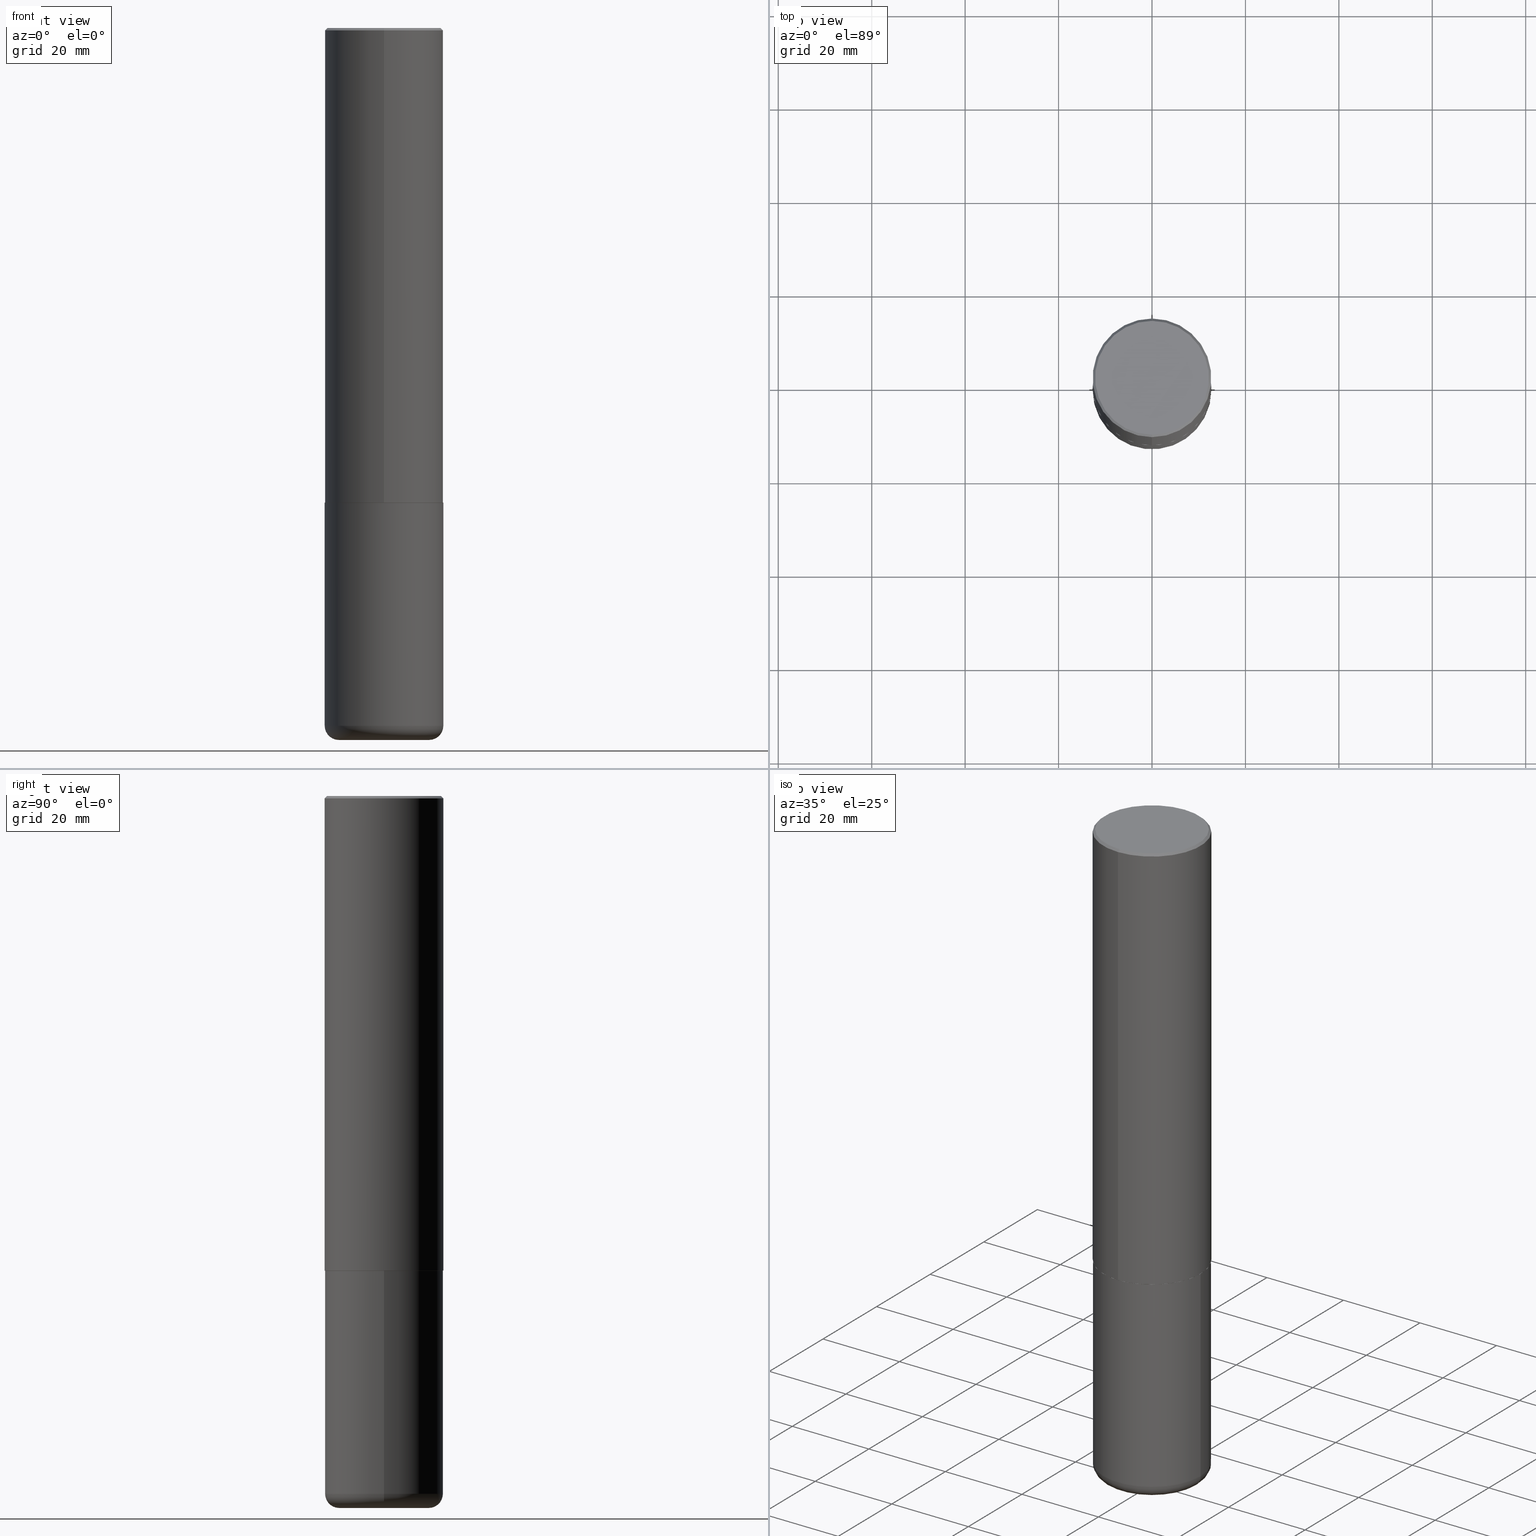
[diagram: canonical four-view strip — front | top / right | iso, engineering-drawing reading convention]
A machine part, canonical four-view strip (front | top / right | iso — engineering-drawing reading convention). The complete STEP part file that produces these views, byte-faithful:
ISO-10303-21;
HEADER;
FILE_DESCRIPTION (( 'STEP AP203' ),
    '1' );
FILE_NAME ('36641.STEP',
    '2024-03-01T17:18:18',
    ( '' ),
    ( '' ),
    'SwSTEP 2.0',
    'SolidWorks 2023',
    '' );
FILE_SCHEMA (( 'CONFIG_CONTROL_DESIGN' ));
ENDSEC;

DATA;
#1 = PERSON_AND_ORGANIZATION ( #275, #354 ) ;
#2 = FACE_OUTER_BOUND ( 'NONE', #121, .T. ) ;
#3 = DATE_TIME_ROLE ( 'creation_date' ) ;
#4 = APPROVAL_DATE_TIME ( #158, #288 ) ;
#5 = LOCAL_TIME ( 12, 18, 18.00000000000000000, #352 ) ;
#6 = ADVANCED_FACE ( 'NONE', ( #2 ), #103, .T. ) ;
#7 = PERSON_AND_ORGANIZATION ( #275, #354 ) ;
#8 = DIRECTION ( 'NONE',  ( -2.445400688795312496E-29, 3.491578886822374431E-15, 1.000000000000000000 ) ) ;
#9 = CC_DESIGN_DATE_AND_TIME_ASSIGNMENT ( #67, #3, ( #319 ) ) ;
#10 = ORIENTED_EDGE ( 'NONE', *, *, #38, .F. ) ;
#11 = DIRECTION ( 'NONE',  ( -2.445468806185136597E-29, 3.491481338843145583E-15, 1.000000000000000000 ) ) ;
#12 = AXIS2_PLACEMENT_3D ( 'NONE', #50, #356, #73 ) ;
#13 = AXIS2_PLACEMENT_3D ( 'NONE', #96, #37, #282 ) ;
#14 = DIRECTION ( 'NONE',  ( 1.000000000000000000, -6.982962677686273021E-15, 0.000000000000000000 ) ) ;
#15 = CARTESIAN_POINT ( 'NONE',  ( 4.890801377590651547E-31, -6.983157773644785987E-17, -0.02000000000000010797 ) ) ;
#16 = PLANE ( 'NONE',  #194 ) ;
#17 = CIRCLE ( 'NONE', #417, 0.5000000000000000000 ) ;
#18 = CC_DESIGN_APPROVAL ( #288, ( #319 ) ) ;
#19 = EDGE_CURVE ( 'NONE', #398, #113, #313, .T. ) ;
#20 = VERTEX_POINT ( 'NONE', #388 ) ;
#21 = DIRECTION ( 'NONE',  ( -2.445468806185136597E-29, 3.491481338843145583E-15, 1.000000000000000000 ) ) ;
#22 = CARTESIAN_POINT ( 'NONE',  ( 1.437935658036860328E-28, -2.052991027239769923E-14, -5.880000000000000782 ) ) ;
#23 = EDGE_LOOP ( 'NONE', ( #144, #81, #231, #93 ) ) ;
#24 = MANIFOLD_SOLID_BREP ( 'Body-Move/Copy2[2]', #154 ) ;
#25 = ADVANCED_FACE ( 'NONE', ( #253 ), #33, .T. ) ;
#26 = VECTOR ( 'NONE', #362, 39.37007874015748854 ) ;
#27 = DIRECTION ( 'NONE',  ( -2.445400688795312216E-29, 3.491578886822374431E-15, 1.000000000000000000 ) ) ;
#28 = PRODUCT ( '36641', '36641', '', ( #351 ) ) ;
#29 = CC_DESIGN_DATE_AND_TIME_ASSIGNMENT ( #142, #168, ( #358 ) ) ;
#30 = COORDINATED_UNIVERSAL_TIME_OFFSET ( 5, 0, .BEHIND. ) ;
#31 = ORIENTED_EDGE ( 'NONE', *, *, #325, .T. ) ;
#32 = CARTESIAN_POINT ( 'NONE',  ( 0.000000000000000000, 0.000000000000000000, 0.000000000000000000 ) ) ;
#33 = CONICAL_SURFACE ( 'NONE', #385, 0.4989999999999999991, 0.7853981633980972044 ) ;
#34 = EDGE_LOOP ( 'NONE', ( #162, #150 ) ) ;
#35 = CALENDAR_DATE ( 2024, 1, 3 ) ;
#36 = DIRECTION ( 'NONE',  ( -2.445400688795312496E-29, 3.491578886822374431E-15, 1.000000000000000000 ) ) ;
#37 = DIRECTION ( 'NONE',  ( -2.445400688795312496E-29, 3.491578886822374431E-15, 1.000000000000000000 ) ) ;
#38 = EDGE_CURVE ( 'NONE', #113, #398, #258, .T. ) ;
#39 = AXIS2_PLACEMENT_3D ( 'NONE', #114, #107, #233 ) ;
#40 = CIRCLE ( 'NONE', #68, 0.5000000000000000000 ) ;
#41 = CARTESIAN_POINT ( 'NONE',  ( 9.781875224740546387E-29, -1.396592535537258233E-14, -4.000000000000000000 ) ) ;
#42 = ORIENTED_EDGE ( 'NONE', *, *, #317, .F. ) ;
#43 = APPROVAL_DATE_TIME ( #255, #391 ) ;
#44 = DIRECTION ( 'NONE',  ( 1.000000000000000000, -6.982962677686265133E-15, 4.883557194083111780E-29 ) ) ;
#45 = EDGE_CURVE ( 'NONE', #239, #100, #370, .T. ) ;
#46 = PLANE ( 'NONE',  #403 ) ;
#47 = CC_DESIGN_PERSON_AND_ORGANIZATION_ASSIGNMENT ( #389, #399, ( #234 ) ) ;
#48 = DIRECTION ( 'NONE',  ( -2.445468806185136877E-29, 3.491481338843145188E-15, 1.000000000000000000 ) ) ;
#49 = ORIENTED_EDGE ( 'NONE', *, *, #85, .T. ) ;
#50 = CARTESIAN_POINT ( 'NONE',  ( 9.781875224740546387E-29, -1.396592535537258233E-14, -4.000000000000000000 ) ) ;
#51 = EDGE_CURVE ( 'NONE', #411, #239, #145, .T. ) ;
#52 = CARTESIAN_POINT ( 'NONE',  ( -3.430248998885764992E-15, -0.5000000000000001110, -0.01999999999999835937 ) ) ;
#53 = ORIENTED_EDGE ( 'NONE', *, *, #325, .F. ) ;
#54 = CIRCLE ( 'NONE', #201, 0.4989999999999999991 ) ;
#55 = CIRCLE ( 'NONE', #13, 0.5000000000000000000 ) ;
#56 = CARTESIAN_POINT ( 'NONE',  ( 3.552713678800502507E-15, 0.5000000000000002220, -1.745789443411188201E-15 ) ) ;
#57 = DIRECTION ( 'NONE',  ( -6.982962677686266711E-15, -1.000000000000000000, 3.491481338843145583E-15 ) ) ;
#58 = ADVANCED_FACE ( 'NONE', ( #299 ), #16, .T. ) ;
#59 = FACE_OUTER_BOUND ( 'NONE', #77, .T. ) ;
#60 = EDGE_LOOP ( 'NONE', ( #337, #353, #312, #10 ) ) ;
#61 = CONICAL_SURFACE ( 'NONE', #286, 0.5000000000000000000, 0.7853981633974446153 ) ;
#62 = LOCAL_TIME ( 12, 18, 18.00000000000000000, #360 ) ;
#63 = CARTESIAN_POINT ( 'NONE',  ( -0.3799999999999999489, -1.782984787650931928E-14, -5.880000000000000782 ) ) ;
#64 = VERTEX_POINT ( 'NONE', #331 ) ;
#65 = DIRECTION ( 'NONE',  ( -2.445400688795312496E-29, 3.491578886822374431E-15, 1.000000000000000000 ) ) ;
#66 = EDGE_CURVE ( 'NONE', #160, #414, #210, .T. ) ;
#67 = DATE_AND_TIME ( #278, #5 ) ;
#68 = AXIS2_PLACEMENT_3D ( 'NONE', #118, #184, #306 ) ;
#69 = DIRECTION ( 'NONE',  ( -2.445468806185136597E-29, 3.491481338843145583E-15, 1.000000000000000000 ) ) ;
#70 = PERSON_AND_ORGANIZATION_ROLE ( 'design_owner' ) ;
#71 = EDGE_CURVE ( 'NONE', #262, #113, #76, .T. ) ;
#72 = FACE_OUTER_BOUND ( 'NONE', #111, .T. ) ;
#73 = DIRECTION ( 'NONE',  ( 1.000000000000000000, -6.982962677686266711E-15, 0.000000000000000000 ) ) ;
#74 = AXIS2_PLACEMENT_3D ( 'NONE', #152, #122, #374 ) ;
#75 = PERSON_AND_ORGANIZATION ( #275, #354 ) ;
#76 = LINE ( 'NONE', #140, #26 ) ;
#77 = EDGE_LOOP ( 'NONE', ( #245, #49, #218, #273 ) ) ;
#78 = DIRECTION ( 'NONE',  ( 6.982962677686265922E-15, 1.000000000000000000, -3.491643216902136408E-15 ) ) ;
#79 = PERSON_AND_ORGANIZATION_ROLE ( 'creator' ) ;
#80 = CARTESIAN_POINT ( 'NONE',  ( 4.890801377590651547E-31, -6.983157773644785987E-17, -0.02000000000000010797 ) ) ;
#81 = ORIENTED_EDGE ( 'NONE', *, *, #368, .F. ) ;
#82 = TOROIDAL_SURFACE ( 'NONE', #309, 0.3799999999999999489, 0.1200000000000004674 ) ;
#83 = AXIS2_PLACEMENT_3D ( 'NONE', #264, #94, #371 ) ;
#84 = CARTESIAN_POINT ( 'NONE',  ( 1.467281283711082406E-28, -2.094888803305887902E-14, -6.000000000000001776 ) ) ;
#85 = EDGE_CURVE ( 'NONE', #64, #100, #366, .T. ) ;
#86 = CARTESIAN_POINT ( 'NONE',  ( -3.491481338843134933E-15, -0.5000000000000002220, 1.745789443411188201E-15 ) ) ;
#87 = ORIENTED_EDGE ( 'NONE', *, *, #368, .T. ) ;
#88 = DIRECTION ( 'NONE',  ( -1.000000000000000000, 6.982962677686265922E-15, -4.876176775795935793E-29 ) ) ;
#89 = UNCERTAINTY_MEASURE_WITH_UNIT (LENGTH_MEASURE( 1.000000000000000082E-05 ), #198, 'distance_accuracy_value', 'NONE');
#90 = LOCAL_TIME ( 12, 18, 18.00000000000000000, #315 ) ;
#91 = DIRECTION ( 'NONE',  ( 1.000000000000000000, -6.982962677686262766E-15, 0.000000000000000000 ) ) ;
#92 = FACE_OUTER_BOUND ( 'NONE', #188, .T. ) ;
#93 = ORIENTED_EDGE ( 'NONE', *, *, #174, .T. ) ;
#94 = DIRECTION ( 'NONE',  ( -2.445400688795312496E-29, 3.491578886822374431E-15, 1.000000000000000000 ) ) ;
#95 = ORIENTED_EDGE ( 'NONE', *, *, #19, .F. ) ;
#96 = CARTESIAN_POINT ( 'NONE',  ( 4.890801377590651547E-31, -6.983157773644785987E-17, -0.02000000000000010797 ) ) ;
#97 = ADVANCED_FACE ( 'NONE', ( #297 ), #82, .T. ) ;
#98 = CARTESIAN_POINT ( 'NONE',  ( 0.5000000000000002220, -2.402139161124082943E-14, -5.880000000000000782 ) ) ;
#99 = PERSON_AND_ORGANIZATION_ROLE ( 'creator' ) ;
#100 = VERTEX_POINT ( 'NONE', #296 ) ;
#101 = DIRECTION ( 'NONE',  ( 0.000000000000000000, 0.000000000000000000, 1.000000000000000000 ) ) ;
#102 = AXIS2_PLACEMENT_3D ( 'NONE', #369, #336, #88 ) ;
#103 = CYLINDRICAL_SURFACE ( 'NONE', #346, 0.5000000000000000000 ) ;
#104 = DIRECTION ( 'NONE',  ( -2.445400688795312496E-29, 3.491578886822374431E-15, 1.000000000000000000 ) ) ;
#105 = DIRECTION ( 'NONE',  ( -6.982962677686265922E-15, -1.000000000000000000, 3.284787166730577015E-15 ) ) ;
#106 = SECURITY_CLASSIFICATION_LEVEL ( 'unclassified' ) ;
#107 = DIRECTION ( 'NONE',  ( -2.445400688795312496E-29, 3.491578886822374431E-15, 1.000000000000000000 ) ) ;
#108 = ORIENTED_EDGE ( 'NONE', *, *, #270, .T. ) ;
#109 = CIRCLE ( 'NONE', #265, 0.4989999999999999991 ) ;
#110 = DIRECTION ( 'NONE',  ( -6.982962677686265922E-15, -1.000000000000000000, 3.491643216902136408E-15 ) ) ;
#111 = EDGE_LOOP ( 'NONE', ( #127, #277, #31, #328 ) ) ;
#112 = DIRECTION ( 'NONE',  ( -2.445400688795312496E-29, 3.491578886822374431E-15, 1.000000000000000000 ) ) ;
#113 = VERTEX_POINT ( 'NONE', #364 ) ;
#114 = CARTESIAN_POINT ( 'NONE',  ( 9.781602755181249985E-29, -1.396631554728949772E-14, -4.000000000000000000 ) ) ;
#115 = ADVANCED_FACE ( 'NONE', ( #256 ), #61, .T. ) ;
#116 = AXIS2_PLACEMENT_3D ( 'NONE', #41, #361, #169 ) ;
#117 = LOCAL_TIME ( 12, 18, 18.00000000000000000, #320 ) ;
#118 = CARTESIAN_POINT ( 'NONE',  ( 1.437935658036860328E-28, -2.052991027239769923E-14, -5.880000000000000782 ) ) ;
#119 = CYLINDRICAL_SURFACE ( 'NONE', #148, 0.5000000000000002220 ) ;
#120 = FACE_OUTER_BOUND ( 'NONE', #332, .T. ) ;
#121 = EDGE_LOOP ( 'NONE', ( #416, #310, #302, #304 ) ) ;
#122 = DIRECTION ( 'NONE',  ( -2.445400688795312496E-29, 3.491578886822374431E-15, 1.000000000000000000 ) ) ;
#123 = ORIENTED_EDGE ( 'NONE', *, *, #19, .T. ) ;
#124 = LINE ( 'NONE', #318, #330 ) ;
#125 = ORIENTED_EDGE ( 'NONE', *, *, #71, .T. ) ;
#126 = PERSON_AND_ORGANIZATION ( #275, #354 ) ;
#127 = ORIENTED_EDGE ( 'NONE', *, *, #249, .F. ) ;
#128 = LOCAL_TIME ( 12, 18, 18.00000000000000000, #30 ) ;
#129 =( NAMED_UNIT ( * ) SI_UNIT ( $, .STERADIAN. ) SOLID_ANGLE_UNIT ( ) );
#130 = CARTESIAN_POINT ( 'NONE',  ( -5.846550105415713449E-45, 8.347789792631125734E-31, 2.390835224756529802E-16 ) ) ;
#131 = EDGE_CURVE ( 'NONE', #20, #173, #232, .T. ) ;
#132 = CARTESIAN_POINT ( 'NONE',  ( 0.000000000000000000, 0.000000000000000000, 0.000000000000000000 ) ) ;
#133 = PERSON_AND_ORGANIZATION ( #275, #354 ) ;
#134 = VECTOR ( 'NONE', #27, 39.37007874015748143 ) ;
#135 = ORIENTED_EDGE ( 'NONE', *, *, #396, .F. ) ;
#136 = DATE_AND_TIME ( #35, #90 ) ;
#137 = DIRECTION ( 'NONE',  ( -2.445468806185136597E-29, 3.491481338843145583E-15, 1.000000000000000000 ) ) ;
#138 = ORIENTED_EDGE ( 'NONE', *, *, #165, .F. ) ;
#139 = EDGE_CURVE ( 'NONE', #100, #239, #402, .T. ) ;
#140 = CARTESIAN_POINT ( 'NONE',  ( 3.545608251442997346E-15, 0.4989999999999860658, -4.000000000000000888 ) ) ;
#141 = APPROVAL ( #415, 'UNSPECIFIED' ) ;
#142 = DATE_AND_TIME ( #202, #62 ) ;
#143 = CARTESIAN_POINT ( 'NONE',  ( 9.779157354492455145E-29, -1.396282396840267582E-14, -3.999000000000000110 ) ) ;
#144 = ORIENTED_EDGE ( 'NONE', *, *, #270, .F. ) ;
#145 = LINE ( 'NONE', #177, #272 ) ;
#146 = ORIENTED_EDGE ( 'NONE', *, *, #382, .F. ) ;
#147 = DIRECTION ( 'NONE',  ( -2.445468806185136597E-29, 3.491481338843145583E-15, 1.000000000000000000 ) ) ;
#148 = AXIS2_PLACEMENT_3D ( 'NONE', #343, #308, #412 ) ;
#149 = FACE_OUTER_BOUND ( 'NONE', #212, .T. ) ;
#150 = ORIENTED_EDGE ( 'NONE', *, *, #193, .F. ) ;
#151 = CYLINDRICAL_SURFACE ( 'NONE', #209, 0.5000000000000000000 ) ;
#152 = CARTESIAN_POINT ( 'NONE',  ( -5.846550105415713449E-45, 8.347789792631125734E-31, 2.390835224756529802E-16 ) ) ;
#153 = ORIENTED_EDGE ( 'NONE', *, *, #66, .F. ) ;
#154 = CLOSED_SHELL ( 'NONE', ( #298, #377, #291, #115, #407, #25, #159, #189 ) ) ;
#155 = CC_DESIGN_APPROVAL ( #141, ( #234 ) ) ;
#156 = CARTESIAN_POINT ( 'NONE',  ( 0.5000000000000000000, -1.745740669421571411E-14, -4.000000000000000000 ) ) ;
#157 = ORIENTED_EDGE ( 'NONE', *, *, #139, .T. ) ;
#158 = DATE_AND_TIME ( #221, #128 ) ;
#159 = ADVANCED_FACE ( 'NONE', ( #290 ), #390, .F. ) ;
#160 = VERTEX_POINT ( 'NONE', #228 ) ;
#161 =( NAMED_UNIT ( * ) PLANE_ANGLE_UNIT ( ) SI_UNIT ( $, .RADIAN. ) );
#162 = ORIENTED_EDGE ( 'NONE', *, *, #131, .F. ) ;
#163 = VECTOR ( 'NONE', #367, 39.37007874015748143 ) ;
#164 = CARTESIAN_POINT ( 'NONE',  ( 3.491481338843133355E-15, 0.4999999999999999445, -0.02000000000000185310 ) ) ;
#165 = EDGE_CURVE ( 'NONE', #262, #179, #54, .T. ) ;
#166 =( LENGTH_UNIT ( ) NAMED_UNIT ( * ) SI_UNIT ( $, .METRE. ) );
#167 = DIRECTION ( 'NONE',  ( -6.982962677686265922E-15, -1.000000000000000000, 3.278217592397112312E-15 ) ) ;
#168 = DATE_TIME_ROLE ( 'classification_date' ) ;
#169 = DIRECTION ( 'NONE',  ( 1.000000000000000000, -6.982962677686266711E-15, 0.000000000000000000 ) ) ;
#170 = DIRECTION ( 'NONE',  ( -6.982962677686265922E-15, -1.000000000000000000, 3.284787166730577015E-15 ) ) ;
#171 = CARTESIAN_POINT ( 'NONE',  ( 3.351822085289406364E-15, 0.4799999999999998157, -1.556416104436912533E-15 ) ) ;
#172 = AXIS2_PLACEMENT_3D ( 'NONE', #340, #147, #182 ) ;
#173 = VERTEX_POINT ( 'NONE', #260 ) ;
#174 = EDGE_CURVE ( 'NONE', #414, #283, #17, .T. ) ;
#175 = DIRECTION ( 'NONE',  ( 4.937700262164529898E-15, 0.7071067811865424657, -0.7071067811865525687 ) ) ;
#176 = ORIENTED_EDGE ( 'NONE', *, *, #45, .T. ) ;
#177 = CARTESIAN_POINT ( 'NONE',  ( 0.5000000000000000000, -3.491481338843133355E-15, 2.438088387897967896E-29 ) ) ;
#178 = CARTESIAN_POINT ( 'NONE',  ( 9.781602755181248864E-29, -1.396631554728949614E-14, -3.999999999999999556 ) ) ;
#179 = VERTEX_POINT ( 'NONE', #204 ) ;
#180 = VECTOR ( 'NONE', #48, 39.37007874015748143 ) ;
#181 = CIRCLE ( 'NONE', #321, 0.1200000000000004258 ) ;
#182 = DIRECTION ( 'NONE',  ( 1.000000000000000000, -6.982962677686273021E-15, 0.000000000000000000 ) ) ;
#183 = ORIENTED_EDGE ( 'NONE', *, *, #305, .F. ) ;
#184 = DIRECTION ( 'NONE',  ( -2.445468806185136597E-29, 3.491481338843145583E-15, 1.000000000000000000 ) ) ;
#185 = EDGE_LOOP ( 'NONE', ( #307, #409, #375, #183 ) ) ;
#186 = PRODUCT_DEFINITION_SHAPE ( 'NONE', 'NONE',  #319 ) ;
#187 = DIRECTION ( 'NONE',  ( -2.445468806185136597E-29, 3.491481338843145583E-15, 1.000000000000000000 ) ) ;
#188 = EDGE_LOOP ( 'NONE', ( #247, #125, #95, #146 ) ) ;
#189 = ADVANCED_FACE ( 'NONE', ( #327 ), #46, .F. ) ;
#190 = DIRECTION ( 'NONE',  ( 7.105427357601001859E-15, 1.000000000000000000, -3.491481338843145583E-15 ) ) ;
#191 = ORIENTED_EDGE ( 'NONE', *, *, #249, .T. ) ;
#192 = DIRECTION ( 'NONE',  ( -6.982962677686266711E-15, -1.000000000000000000, 3.491578886822374825E-15 ) ) ;
#193 = EDGE_CURVE ( 'NONE', #173, #20, #314, .T. ) ;
#194 = AXIS2_PLACEMENT_3D ( 'NONE', #222, #208, #400 ) ;
#195 = TOROIDAL_SURFACE ( 'NONE', #248, 0.3799999999999999489, 0.1200000000000004674 ) ;
#196 = APPROVAL_ROLE ( '' ) ;
#197 = DIRECTION ( 'NONE',  ( 1.000000000000000000, -6.982962677686266711E-15, 4.876176775795935793E-29 ) ) ;
#198 =( CONVERSION_BASED_UNIT ( 'INCH', #284 ) LENGTH_UNIT ( ) NAMED_UNIT ( #266 ) );
#199 = ORIENTED_EDGE ( 'NONE', *, *, #267, .F. ) ;
#200 = APPLICATION_PROTOCOL_DEFINITION ( 'international standard', 'config_control_design', 1994, #206 ) ;
#201 = AXIS2_PLACEMENT_3D ( 'NONE', #203, #334, #170 ) ;
#202 = CALENDAR_DATE ( 2024, 1, 3 ) ;
#203 = CARTESIAN_POINT ( 'NONE',  ( 9.781602755181248864E-29, -1.396631554728949614E-14, -3.999999999999999556 ) ) ;
#204 = CARTESIAN_POINT ( 'NONE',  ( -3.484498376165348733E-15, -0.4990000000000139324, -3.999999999999997780 ) ) ;
#205 = ADVANCED_FACE ( 'NONE', ( #59 ), #151, .T. ) ;
#206 = APPLICATION_CONTEXT ( 'configuration controlled 3d designs of mechanical parts and assemblies' ) ;
#207 = VECTOR ( 'NONE', #175, 39.37007874015748143 ) ;
#208 = DIRECTION ( 'NONE',  ( 2.438088387897960049E-29, -3.491481338843145188E-15, -1.000000000000000000 ) ) ;
#209 = AXIS2_PLACEMENT_3D ( 'NONE', #303, #21, #405 ) ;
#210 = LINE ( 'NONE', #261, #207 ) ;
#211 = DIRECTION ( 'NONE',  ( 1.000000000000000000, -6.982962677686275388E-15, 0.000000000000000000 ) ) ;
#212 = EDGE_LOOP ( 'NONE', ( #176, #157 ) ) ;
#213 = CARTESIAN_POINT ( 'NONE',  ( 3.549160965121800216E-15, 0.4989999999999860658, -4.000000000000000888 ) ) ;
#214 = AXIS2_PLACEMENT_3D ( 'NONE', #32, #104, #192 ) ;
#215 = PLANE ( 'NONE',  #102 ) ;
#216 = FACE_OUTER_BOUND ( 'NONE', #341, .T. ) ;
#217 = DIRECTION ( 'NONE',  ( 2.445400688795312496E-29, -3.491578886822374431E-15, -1.000000000000000000 ) ) ;
#218 = ORIENTED_EDGE ( 'NONE', *, *, #45, .F. ) ;
#219 = DESIGN_CONTEXT ( 'detailed design', #206, 'design' ) ;
#220 = DIRECTION ( 'NONE',  ( 1.000000000000000000, 0.000000000000000000, 0.000000000000000000 ) ) ;
#221 = CALENDAR_DATE ( 2024, 1, 3 ) ;
#222 = CARTESIAN_POINT ( 'NONE',  ( 2.624564891298397617E-29, -3.820266483514897612E-14, -6.000000000000001776 ) ) ;
#223 = AXIS2_PLACEMENT_3D ( 'NONE', #143, #112, #293 ) ;
#224 = CIRCLE ( 'NONE', #250, 0.4799999999999998157 ) ;
#225 = DIRECTION ( 'NONE',  ( 2.445400688795312496E-29, -3.491578886822374431E-15, -1.000000000000000000 ) ) ;
#226 = ORIENTED_EDGE ( 'NONE', *, *, #131, .T. ) ;
#227 = ADVANCED_FACE ( 'NONE', ( #149 ), #215, .F. ) ;
#228 = CARTESIAN_POINT ( 'NONE',  ( 3.421651712066270057E-15, 0.4799999999999998157, -1.436874343199086190E-15 ) ) ;
#229 = APPROVAL_ROLE ( '' ) ;
#230 = DIRECTION ( 'NONE',  ( -2.445468806185136877E-29, 3.491481338843145188E-15, 1.000000000000000000 ) ) ;
#231 = ORIENTED_EDGE ( 'NONE', *, *, #66, .T. ) ;
#232 = CIRCLE ( 'NONE', #357, 0.3799999999999999489 ) ;
#233 = DIRECTION ( 'NONE',  ( -6.982962677686265922E-15, -1.000000000000000000, 3.491578886822374431E-15 ) ) ;
#234 = PRODUCT_DEFINITION_FORMATION_WITH_SPECIFIED_SOURCE ( 'ANY', '', #28, .NOT_KNOWN. ) ;
#235 = DIRECTION ( 'NONE',  ( -1.000000000000000000, 7.105427357600997914E-15, 0.000000000000000000 ) ) ;
#236 = DIRECTION ( 'NONE',  ( 1.000000000000000000, -6.982962677686265133E-15, 4.883557194083111780E-29 ) ) ;
#237 = DIRECTION ( 'NONE',  ( 6.982962677686265922E-15, 1.000000000000000000, -3.491643216902136408E-15 ) ) ;
#238 = ADVANCED_BREP_SHAPE_REPRESENTATION ( '36641', ( #285, #24, #392 ), #386 ) ;
#239 = VERTEX_POINT ( 'NONE', #156 ) ;
#240 = AXIS2_PLACEMENT_3D ( 'NONE', #376, #217, #237 ) ;
#241 = CONICAL_SURFACE ( 'NONE', #240, 0.5000000000000000000, 0.7853981633974446153 ) ;
#242 = CARTESIAN_POINT ( 'NONE',  ( 1.437935658036860328E-28, -2.052991027239769923E-14, -5.880000000000000782 ) ) ;
#243 = ORIENTED_EDGE ( 'NONE', *, *, #413, .T. ) ;
#244 = DIRECTION ( 'NONE',  ( -2.445400688795312496E-29, 3.491578886822374431E-15, 1.000000000000000000 ) ) ;
#245 = ORIENTED_EDGE ( 'NONE', *, *, #317, .T. ) ;
#246 = CARTESIAN_POINT ( 'NONE',  ( -3.491481338843038692E-15, -0.5000000000000144329, -3.998999999999998334 ) ) ;
#247 = ORIENTED_EDGE ( 'NONE', *, *, #333, .T. ) ;
#248 = AXIS2_PLACEMENT_3D ( 'NONE', #242, #187, #236 ) ;
#249 = EDGE_CURVE ( 'NONE', #113, #414, #338, .T. ) ;
#250 = AXIS2_PLACEMENT_3D ( 'NONE', #130, #65, #280 ) ;
#251 = APPROVAL_STATUS ( 'not_yet_approved' ) ;
#252 = EDGE_CURVE ( 'NONE', #173, #64, #181, .T. ) ;
#253 = FACE_OUTER_BOUND ( 'NONE', #60, .T. ) ;
#254 = CC_DESIGN_PERSON_AND_ORGANIZATION_ASSIGNMENT ( #324, #289, ( #358 ) ) ;
#255 = DATE_AND_TIME ( #322, #117 ) ;
#256 = FACE_OUTER_BOUND ( 'NONE', #23, .T. ) ;
#257 = ORIENTED_EDGE ( 'NONE', *, *, #252, .T. ) ;
#258 = CIRCLE ( 'NONE', #223, 0.5000000000000005551 ) ;
#259 = APPROVAL_PERSON_ORGANIZATION ( #133, #141, #196 ) ;
#260 = CARTESIAN_POINT ( 'NONE',  ( -0.3799999999999999489, -1.761301111538384868E-14, -6.000000000000001776 ) ) ;
#261 = CARTESIAN_POINT ( 'NONE',  ( 3.491481338843133355E-15, 0.4999999999999999445, -0.02000000000000185310 ) ) ;
#262 = VERTEX_POINT ( 'NONE', #213 ) ;
#263 = CARTESIAN_POINT ( 'NONE',  ( 9.781602755181248864E-29, -1.396631554728949614E-14, -3.999999999999999556 ) ) ;
#264 = CARTESIAN_POINT ( 'NONE',  ( 9.781602755181248864E-29, -1.396631554728949614E-14, -3.999999999999999556 ) ) ;
#265 = AXIS2_PLACEMENT_3D ( 'NONE', #178, #244, #300 ) ;
#266 = DIMENSIONAL_EXPONENTS ( 1.000000000000000000, 0.000000000000000000, 0.000000000000000000, 0.000000000000000000, 0.000000000000000000, 0.000000000000000000, 0.000000000000000000 ) ;
#267 = EDGE_CURVE ( 'NONE', #20, #411, #301, .T. ) ;
#268 = CARTESIAN_POINT ( 'NONE',  ( 0.3799999999999999489, -2.318343608991847616E-14, -5.880000000000000782 ) ) ;
#269 = DIRECTION ( 'NONE',  ( -4.851104656540946131E-15, -0.7071067811865473507, -0.7071067811865476838 ) ) ;
#270 = EDGE_CURVE ( 'NONE', #279, #283, #404, .T. ) ;
#271 = FACE_OUTER_BOUND ( 'NONE', #401, .T. ) ;
#272 = VECTOR ( 'NONE', #230, 39.37007874015748143 ) ;
#273 = ORIENTED_EDGE ( 'NONE', *, *, #51, .F. ) ;
#274 = APPROVAL_PERSON_ORGANIZATION ( #126, #288, #378 ) ;
#275 = PERSON ( 'UNSPECIFIED', 'UNSPECIFIED', 'UNSPECIFIED', ('UNSPECIFIED'), ('UNSPECIFIED'), ('UNSPECIFIED') ) ;
#276 = LINE ( 'NONE', #86, #163 ) ;
#277 = ORIENTED_EDGE ( 'NONE', *, *, #38, .T. ) ;
#278 = CALENDAR_DATE ( 2024, 1, 3 ) ;
#279 = VERTEX_POINT ( 'NONE', #408 ) ;
#280 = DIRECTION ( 'NONE',  ( -6.982962677686265922E-15, -1.000000000000000000, 3.491578886822374036E-15 ) ) ;
#281 = AXIS2_PLACEMENT_3D ( 'NONE', #22, #410, #91 ) ;
#282 = DIRECTION ( 'NONE',  ( -6.982962677686265922E-15, -1.000000000000000000, 3.491643216902136408E-15 ) ) ;
#283 = VERTEX_POINT ( 'NONE', #311 ) ;
#284 = LENGTH_MEASURE_WITH_UNIT ( LENGTH_MEASURE( 0.02539999999999999897 ), #166 );
#285 = MANIFOLD_SOLID_BREP ( 'Body-Move/Copy2[1]', #379 ) ;
#286 = AXIS2_PLACEMENT_3D ( 'NONE', #15, #225, #78 ) ;
#287 = APPROVAL_PERSON_ORGANIZATION ( #7, #391, #229 ) ;
#288 = APPROVAL ( #251, 'UNSPECIFIED' ) ;
#289 = PERSON_AND_ORGANIZATION_ROLE ( 'classification_officer' ) ;
#290 = FACE_OUTER_BOUND ( 'NONE', #363, .T. ) ;
#291 = ADVANCED_FACE ( 'NONE', ( #120 ), #241, .T. ) ;
#292 = APPROVAL_DATE_TIME ( #136, #141 ) ;
#293 = DIRECTION ( 'NONE',  ( -6.982962677686265922E-15, -1.000000000000000000, 3.278217592397112312E-15 ) ) ;
#294 = PRODUCT_RELATED_PRODUCT_CATEGORY ( 'detail', '', ( #28 ) ) ;
#295 = AXIS2_PLACEMENT_3D ( 'NONE', #268, #57, #211 ) ;
#296 = CARTESIAN_POINT ( 'NONE',  ( -0.5000000000000000000, -1.369520413508463906E-14, -4.000000000000000000 ) ) ;
#297 = FACE_OUTER_BOUND ( 'NONE', #185, .T. ) ;
#298 = ADVANCED_FACE ( 'NONE', ( #92 ), #339, .T. ) ;
#299 = FACE_OUTER_BOUND ( 'NONE', #34, .T. ) ;
#300 = DIRECTION ( 'NONE',  ( -6.982962677686265922E-15, -1.000000000000000000, 3.284787166730577015E-15 ) ) ;
#301 = CIRCLE ( 'NONE', #295, 0.1200000000000004258 ) ;
#302 = ORIENTED_EDGE ( 'NONE', *, *, #51, .T. ) ;
#303 = CARTESIAN_POINT ( 'NONE',  ( 0.000000000000000000, 0.000000000000000000, 0.000000000000000000 ) ) ;
#304 = ORIENTED_EDGE ( 'NONE', *, *, #139, .F. ) ;
#305 = EDGE_CURVE ( 'NONE', #64, #411, #372, .T. ) ;
#306 = DIRECTION ( 'NONE',  ( 1.000000000000000000, -6.982962677686262766E-15, 0.000000000000000000 ) ) ;
#307 = ORIENTED_EDGE ( 'NONE', *, *, #252, .F. ) ;
#308 = DIRECTION ( 'NONE',  ( -2.445400688795312496E-29, 3.491578886822374431E-15, 1.000000000000000000 ) ) ;
#309 = AXIS2_PLACEMENT_3D ( 'NONE', #323, #137, #44 ) ;
#310 = ORIENTED_EDGE ( 'NONE', *, *, #305, .T. ) ;
#311 = CARTESIAN_POINT ( 'NONE',  ( -3.430248998885764992E-15, -0.5000000000000001110, -0.01999999999999835937 ) ) ;
#312 = ORIENTED_EDGE ( 'NONE', *, *, #382, .T. ) ;
#313 = CIRCLE ( 'NONE', #329, 0.5000000000000005551 ) ;
#314 = CIRCLE ( 'NONE', #172, 0.3799999999999999489 ) ;
#315 = COORDINATED_UNIVERSAL_TIME_OFFSET ( 5, 0, .BEHIND. ) ;
#316 = CARTESIAN_POINT ( 'NONE',  ( 9.779157354492455145E-29, -1.396282396840267582E-14, -3.999000000000000110 ) ) ;
#317 = EDGE_CURVE ( 'NONE', #411, #64, #40, .T. ) ;
#318 = CARTESIAN_POINT ( 'NONE',  ( -3.484498376165348733E-15, -0.4990000000000139324, -3.999999999999997780 ) ) ;
#319 = PRODUCT_DEFINITION ( 'UNKNOWN', '', #234, #219 ) ;
#320 = COORDINATED_UNIVERSAL_TIME_OFFSET ( 5, 0, .BEHIND. ) ;
#321 = AXIS2_PLACEMENT_3D ( 'NONE', #63, #190, #235 ) ;
#322 = CALENDAR_DATE ( 2024, 1, 3 ) ;
#323 = CARTESIAN_POINT ( 'NONE',  ( 1.437935658036860328E-28, -2.052991027239769923E-14, -5.880000000000000782 ) ) ;
#324 = PERSON_AND_ORGANIZATION ( #275, #354 ) ;
#325 = EDGE_CURVE ( 'NONE', #398, #283, #276, .T. ) ;
#326 = CARTESIAN_POINT ( 'NONE',  ( -0.5000000000000000000, 3.552713678800500929E-15, -2.459467545127452891E-29 ) ) ;
#327 = FACE_OUTER_BOUND ( 'NONE', #344, .T. ) ;
#328 = ORIENTED_EDGE ( 'NONE', *, *, #174, .F. ) ;
#329 = AXIS2_PLACEMENT_3D ( 'NONE', #316, #36, #167 ) ;
#330 = VECTOR ( 'NONE', #387, 39.37007874015748143 ) ;
#331 = CARTESIAN_POINT ( 'NONE',  ( -0.5000000000000002220, -1.697719659359719514E-14, -5.880000000000000782 ) ) ;
#332 = EDGE_LOOP ( 'NONE', ( #135, #108, #243, #153 ) ) ;
#333 = EDGE_CURVE ( 'NONE', #179, #262, #109, .T. ) ;
#334 = DIRECTION ( 'NONE',  ( -2.445400688795312496E-29, 3.491578886822374431E-15, 1.000000000000000000 ) ) ;
#335 = CC_DESIGN_PERSON_AND_ORGANIZATION_ASSIGNMENT ( #75, #79, ( #234 ) ) ;
#336 = DIRECTION ( 'NONE',  ( 2.438088387897960049E-29, -3.491481338843145188E-15, -1.000000000000000000 ) ) ;
#337 = ORIENTED_EDGE ( 'NONE', *, *, #71, .F. ) ;
#338 = LINE ( 'NONE', #56, #134 ) ;
#339 = CONICAL_SURFACE ( 'NONE', #83, 0.4989999999999999991, 0.7853981633980972044 ) ;
#340 = CARTESIAN_POINT ( 'NONE',  ( 1.467281283711082406E-28, -2.094888803305887902E-14, -6.000000000000001776 ) ) ;
#341 = EDGE_LOOP ( 'NONE', ( #123, #191, #373, #53 ) ) ;
#342 = APPLICATION_CONTEXT ( 'configuration controlled 3d designs of mechanical parts and assemblies' ) ;
#343 = CARTESIAN_POINT ( 'NONE',  ( 0.000000000000000000, 0.000000000000000000, 0.000000000000000000 ) ) ;
#344 = EDGE_LOOP ( 'NONE', ( #87, #406 ) ) ;
#345 = DIRECTION ( 'NONE',  ( 6.982962677686265922E-15, 1.000000000000000000, -3.491578886822374431E-15 ) ) ;
#346 = AXIS2_PLACEMENT_3D ( 'NONE', #132, #69, #197 ) ;
#347 = ORIENTED_EDGE ( 'NONE', *, *, #333, .F. ) ;
#348 = CC_DESIGN_APPROVAL ( #391, ( #358 ) ) ;
#349 = CC_DESIGN_PERSON_AND_ORGANIZATION_ASSIGNMENT ( #1, #70, ( #28 ) ) ;
#350 = CYLINDRICAL_SURFACE ( 'NONE', #214, 0.5000000000000002220 ) ;
#351 = MECHANICAL_CONTEXT ( 'NONE', #342, 'mechanical' ) ;
#352 = COORDINATED_UNIVERSAL_TIME_OFFSET ( 5, 0, .BEHIND. ) ;
#353 = ORIENTED_EDGE ( 'NONE', *, *, #165, .T. ) ;
#354 = ORGANIZATION ( 'UNSPECIFIED', 'UNSPECIFIED', '' ) ;
#355 = APPLICATION_PROTOCOL_DEFINITION ( 'international standard', 'config_control_design', 1994, #342 ) ;
#356 = DIRECTION ( 'NONE',  ( -2.445468806185136597E-29, 3.491481338843145583E-15, 1.000000000000000000 ) ) ;
#357 = AXIS2_PLACEMENT_3D ( 'NONE', #84, #11, #14 ) ;
#358 = SECURITY_CLASSIFICATION ( '', '', #106 ) ;
#359 = ADVANCED_FACE ( 'NONE', ( #271 ), #195, .T. ) ;
#360 = COORDINATED_UNIVERSAL_TIME_OFFSET ( 5, 0, .BEHIND. ) ;
#361 = DIRECTION ( 'NONE',  ( -2.445468806185136597E-29, 3.491481338843145583E-15, 1.000000000000000000 ) ) ;
#362 = DIRECTION ( 'NONE',  ( 5.024295867791321174E-15, 0.7071067811870086484, 0.7071067811860861640 ) ) ;
#363 = EDGE_LOOP ( 'NONE', ( #347, #138 ) ) ;
#364 = CARTESIAN_POINT ( 'NONE',  ( 3.552713678800552205E-15, 0.4999999999999866218, -3.999000000000001886 ) ) ;
#365 = CIRCLE ( 'NONE', #74, 0.4799999999999998157 ) ;
#366 = LINE ( 'NONE', #326, #180 ) ;
#367 = DIRECTION ( 'NONE',  ( -2.445400688795312216E-29, 3.491578886822374431E-15, 1.000000000000000000 ) ) ;
#368 = EDGE_CURVE ( 'NONE', #160, #279, #365, .T. ) ;
#369 = CARTESIAN_POINT ( 'NONE',  ( 9.781875224740546387E-29, -1.396592535537258233E-14, -4.000000000000000000 ) ) ;
#370 = CIRCLE ( 'NONE', #12, 0.5000000000000000000 ) ;
#371 = DIRECTION ( 'NONE',  ( -6.982962677686265922E-15, -1.000000000000000000, 3.284787166730577015E-15 ) ) ;
#372 = CIRCLE ( 'NONE', #281, 0.5000000000000000000 ) ;
#373 = ORIENTED_EDGE ( 'NONE', *, *, #413, .F. ) ;
#374 = DIRECTION ( 'NONE',  ( -6.982962677686265922E-15, -1.000000000000000000, 3.491578886822374036E-15 ) ) ;
#375 = ORIENTED_EDGE ( 'NONE', *, *, #267, .T. ) ;
#376 = CARTESIAN_POINT ( 'NONE',  ( 4.890801377590651547E-31, -6.983157773644785987E-17, -0.02000000000000010797 ) ) ;
#377 = ADVANCED_FACE ( 'NONE', ( #216 ), #119, .T. ) ;
#378 = APPROVAL_ROLE ( '' ) ;
#379 = CLOSED_SHELL ( 'NONE', ( #205, #359, #227, #6, #97, #58 ) ) ;
#380 = CC_DESIGN_SECURITY_CLASSIFICATION ( #358, ( #234 ) ) ;
#381 = CC_DESIGN_PERSON_AND_ORGANIZATION_ASSIGNMENT ( #383, #99, ( #319 ) ) ;
#382 = EDGE_CURVE ( 'NONE', #179, #398, #124, .T. ) ;
#383 = PERSON_AND_ORGANIZATION ( #275, #354 ) ;
#384 = CARTESIAN_POINT ( 'NONE',  ( 0.000000000000000000, 0.000000000000000000, 0.000000000000000000 ) ) ;
#385 = AXIS2_PLACEMENT_3D ( 'NONE', #263, #8, #105 ) ;
#386 =( GEOMETRIC_REPRESENTATION_CONTEXT ( 3 ) GLOBAL_UNCERTAINTY_ASSIGNED_CONTEXT ( ( #89 ) ) GLOBAL_UNIT_ASSIGNED_CONTEXT ( ( #198, #161, #129 ) ) REPRESENTATION_CONTEXT ( 'NONE', 'WORKASPACE' ) );
#387 = DIRECTION ( 'NONE',  ( -4.937700262167751606E-15, -0.7071067811870038744, 0.7071067811860911601 ) ) ;
#388 = CARTESIAN_POINT ( 'NONE',  ( 0.3799999999999999489, -2.360241385057966226E-14, -6.000000000000001776 ) ) ;
#389 = PERSON_AND_ORGANIZATION ( #275, #354 ) ;
#390 = PLANE ( 'NONE',  #39 ) ;
#391 = APPROVAL ( #395, 'UNSPECIFIED' ) ;
#392 = AXIS2_PLACEMENT_3D ( 'NONE', #384, #101, #220 ) ;
#393 = SHAPE_DEFINITION_REPRESENTATION ( #186, #238 ) ;
#394 = DIRECTION ( 'NONE',  ( -2.445400688795312496E-29, 3.491578886822374431E-15, 1.000000000000000000 ) ) ;
#395 = APPROVAL_STATUS ( 'not_yet_approved' ) ;
#396 = EDGE_CURVE ( 'NONE', #279, #160, #224, .T. ) ;
#397 = DIRECTION ( 'NONE',  ( 2.445400688795312496E-29, -3.491578886822374431E-15, -1.000000000000000000 ) ) ;
#398 = VERTEX_POINT ( 'NONE', #246 ) ;
#399 = PERSON_AND_ORGANIZATION_ROLE ( 'design_supplier' ) ;
#400 = DIRECTION ( 'NONE',  ( -1.000000000000000000, 6.982962677686265922E-15, -4.876176775795935793E-29 ) ) ;
#401 = EDGE_LOOP ( 'NONE', ( #226, #257, #42, #199 ) ) ;
#402 = CIRCLE ( 'NONE', #116, 0.5000000000000000000 ) ;
#403 = AXIS2_PLACEMENT_3D ( 'NONE', #171, #397, #345 ) ;
#404 = LINE ( 'NONE', #52, #418 ) ;
#405 = DIRECTION ( 'NONE',  ( 1.000000000000000000, -6.982962677686266711E-15, 4.876176775795935793E-29 ) ) ;
#406 = ORIENTED_EDGE ( 'NONE', *, *, #396, .T. ) ;
#407 = ADVANCED_FACE ( 'NONE', ( #72 ), #350, .T. ) ;
#408 = CARTESIAN_POINT ( 'NONE',  ( -3.361644018908049661E-15, -0.4799999999999998157, 1.915041388150391954E-15 ) ) ;
#409 = ORIENTED_EDGE ( 'NONE', *, *, #193, .T. ) ;
#410 = DIRECTION ( 'NONE',  ( -2.445468806185136597E-29, 3.491481338843145583E-15, 1.000000000000000000 ) ) ;
#411 = VERTEX_POINT ( 'NONE', #98 ) ;
#412 = DIRECTION ( 'NONE',  ( -6.982962677686266711E-15, -1.000000000000000000, 3.491578886822374825E-15 ) ) ;
#413 = EDGE_CURVE ( 'NONE', #283, #414, #55, .T. ) ;
#414 = VERTEX_POINT ( 'NONE', #164 ) ;
#415 = APPROVAL_STATUS ( 'not_yet_approved' ) ;
#416 = ORIENTED_EDGE ( 'NONE', *, *, #85, .F. ) ;
#417 = AXIS2_PLACEMENT_3D ( 'NONE', #80, #394, #110 ) ;
#418 = VECTOR ( 'NONE', #269, 39.37007874015748143 ) ;
ENDSEC;
END-ISO-10303-21;
